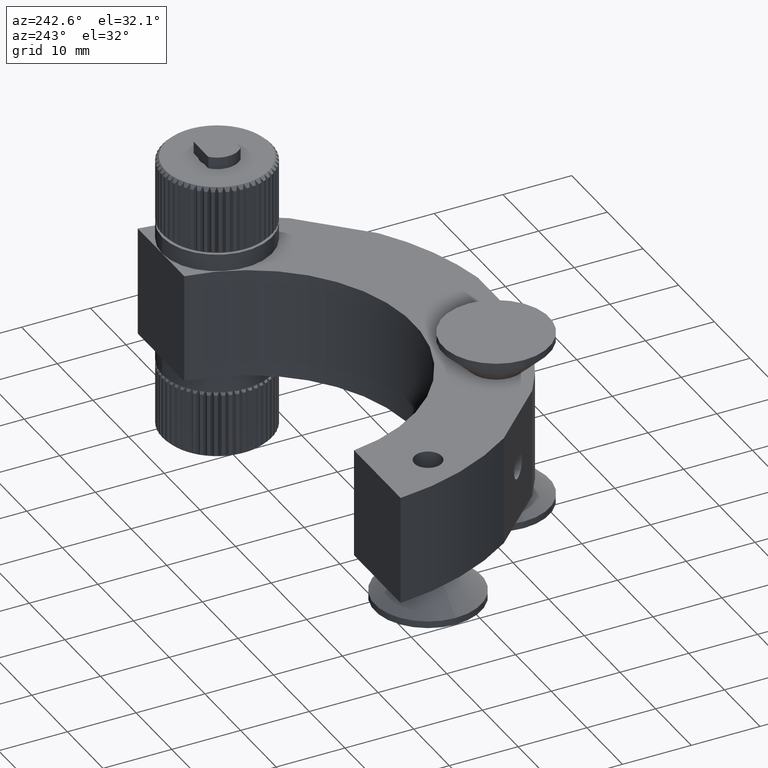
[diagram: clean part render]
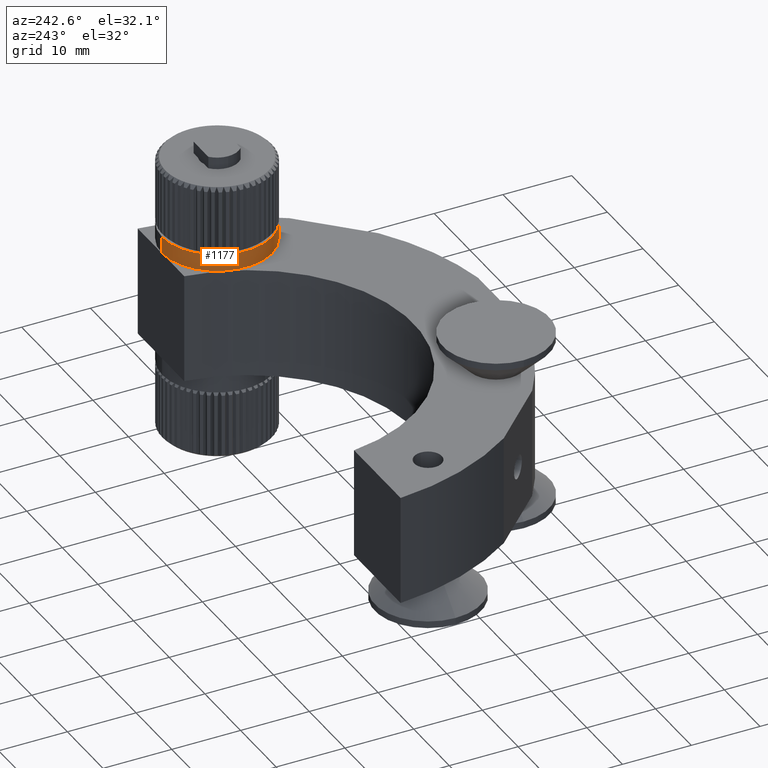
[diagram: same view with one face highlighted and labeled with its STEP entity id]
A machine part, auxiliary view. The second image highlights one B-rep face of the part: STEP entity #1177.
In plain terms, the highlighted cylindrical surface (partial cylindrical patch) has radius 8 mm, axis along (0, 0, 1).
Its self-contained STEP definition (entity closure, byte-faithful):
#10 = VERTEX_POINT ( 'NONE', #6755 ) ;
#1177 = ADVANCED_FACE ( 'NONE', ( #6447 ), #10538, .T. ) ;
#1573 = VECTOR ( 'NONE', #5941, 1000.000000000000000 ) ;
#1772 = AXIS2_PLACEMENT_3D ( 'NONE', #2909, #14277, #17096 ) ;
#2395 = CARTESIAN_POINT ( 'NONE',  ( 32.72957168722360400, -1.101940590081937500, 7.999999999999996400 ) ) ;
#2909 = CARTESIAN_POINT ( 'NONE',  ( 32.72957168722360400, -9.101940590081937900, 7.999999999999996400 ) ) ;
#3341 = DIRECTION ( 'NONE',  ( 0.0000000000000000000, 0.0000000000000000000, 1.000000000000000000 ) ) ;
#3360 = ORIENTED_EDGE ( 'NONE', *, *, #4416, .T. ) ;
#3514 = DIRECTION ( 'NONE',  ( 0.0000000000000000000, -1.000000000000000000, 0.0000000000000000000 ) ) ;
#3987 = ORIENTED_EDGE ( 'NONE', *, *, #14836, .F. ) ;
#4416 = EDGE_CURVE ( 'NONE', #10, #13916, #11988, .T. ) ;
#4771 = EDGE_LOOP ( 'NONE', ( #13584, #6093, #3360, #3987 ) ) ;
#5027 = DIRECTION ( 'NONE',  ( 0.0000000000000000000, 0.0000000000000000000, 1.000000000000000000 ) ) ;
#5255 = CIRCLE ( 'NONE', #14004, 8.000000000000000000 ) ;
#5908 = LINE ( 'NONE', #15903, #1573 ) ;
#5941 = DIRECTION ( 'NONE',  ( 0.0000000000000000000, 0.0000000000000000000, 1.000000000000000000 ) ) ;
#6093 = ORIENTED_EDGE ( 'NONE', *, *, #16062, .T. ) ;
#6447 = FACE_OUTER_BOUND ( 'NONE', #4771, .T. ) ;
#6755 = CARTESIAN_POINT ( 'NONE',  ( 32.72957168722360400, -17.10194059008193800, 7.999999999999996400 ) ) ;
#7070 = AXIS2_PLACEMENT_3D ( 'NONE', #17282, #5027, #11996 ) ;
#10538 = CYLINDRICAL_SURFACE ( 'NONE', #7070, 8.000000000000000000 ) ;
#11425 = VERTEX_POINT ( 'NONE', #11856 ) ;
#11643 = CARTESIAN_POINT ( 'NONE',  ( 32.72957168722360400, -17.10194059008193800, 15.60000000000002300 ) ) ;
#11812 = DIRECTION ( 'NONE',  ( 0.0000000000000000000, 0.0000000000000000000, 1.000000000000000000 ) ) ;
#11856 = CARTESIAN_POINT ( 'NONE',  ( 32.72957168722360400, -1.101940590081937500, 10.49999999999999500 ) ) ;
#11988 = LINE ( 'NONE', #11643, #15065 ) ;
#11996 = DIRECTION ( 'NONE',  ( 0.0000000000000000000, -1.000000000000000000, 0.0000000000000000000 ) ) ;
#13478 = CARTESIAN_POINT ( 'NONE',  ( 32.72957168722360400, -17.10194059008193800, 10.49999999999999500 ) ) ;
#13584 = ORIENTED_EDGE ( 'NONE', *, *, #14704, .F. ) ;
#13916 = VERTEX_POINT ( 'NONE', #13478 ) ;
#14004 = AXIS2_PLACEMENT_3D ( 'NONE', #14757, #11812, #3514 ) ;
#14277 = DIRECTION ( 'NONE',  ( 0.0000000000000000000, 0.0000000000000000000, 1.000000000000000000 ) ) ;
#14704 = EDGE_CURVE ( 'NONE', #15392, #11425, #5908, .T. ) ;
#14757 = CARTESIAN_POINT ( 'NONE',  ( 32.72957168722360400, -9.101940590081937900, 10.49999999999999500 ) ) ;
#14836 = EDGE_CURVE ( 'NONE', #11425, #13916, #5255, .T. ) ;
#15065 = VECTOR ( 'NONE', #3341, 1000.000000000000000 ) ;
#15392 = VERTEX_POINT ( 'NONE', #2395 ) ;
#15903 = CARTESIAN_POINT ( 'NONE',  ( 32.72957168722360400, -1.101940590081937500, 15.60000000000002300 ) ) ;
#16062 = EDGE_CURVE ( 'NONE', #15392, #10, #17822, .T. ) ;
#17096 = DIRECTION ( 'NONE',  ( 0.0000000000000000000, -1.000000000000000000, 0.0000000000000000000 ) ) ;
#17282 = CARTESIAN_POINT ( 'NONE',  ( 32.72957168722360400, -9.101940590081937900, 15.60000000000002300 ) ) ;
#17822 = CIRCLE ( 'NONE', #1772, 8.000000000000000000 ) ;